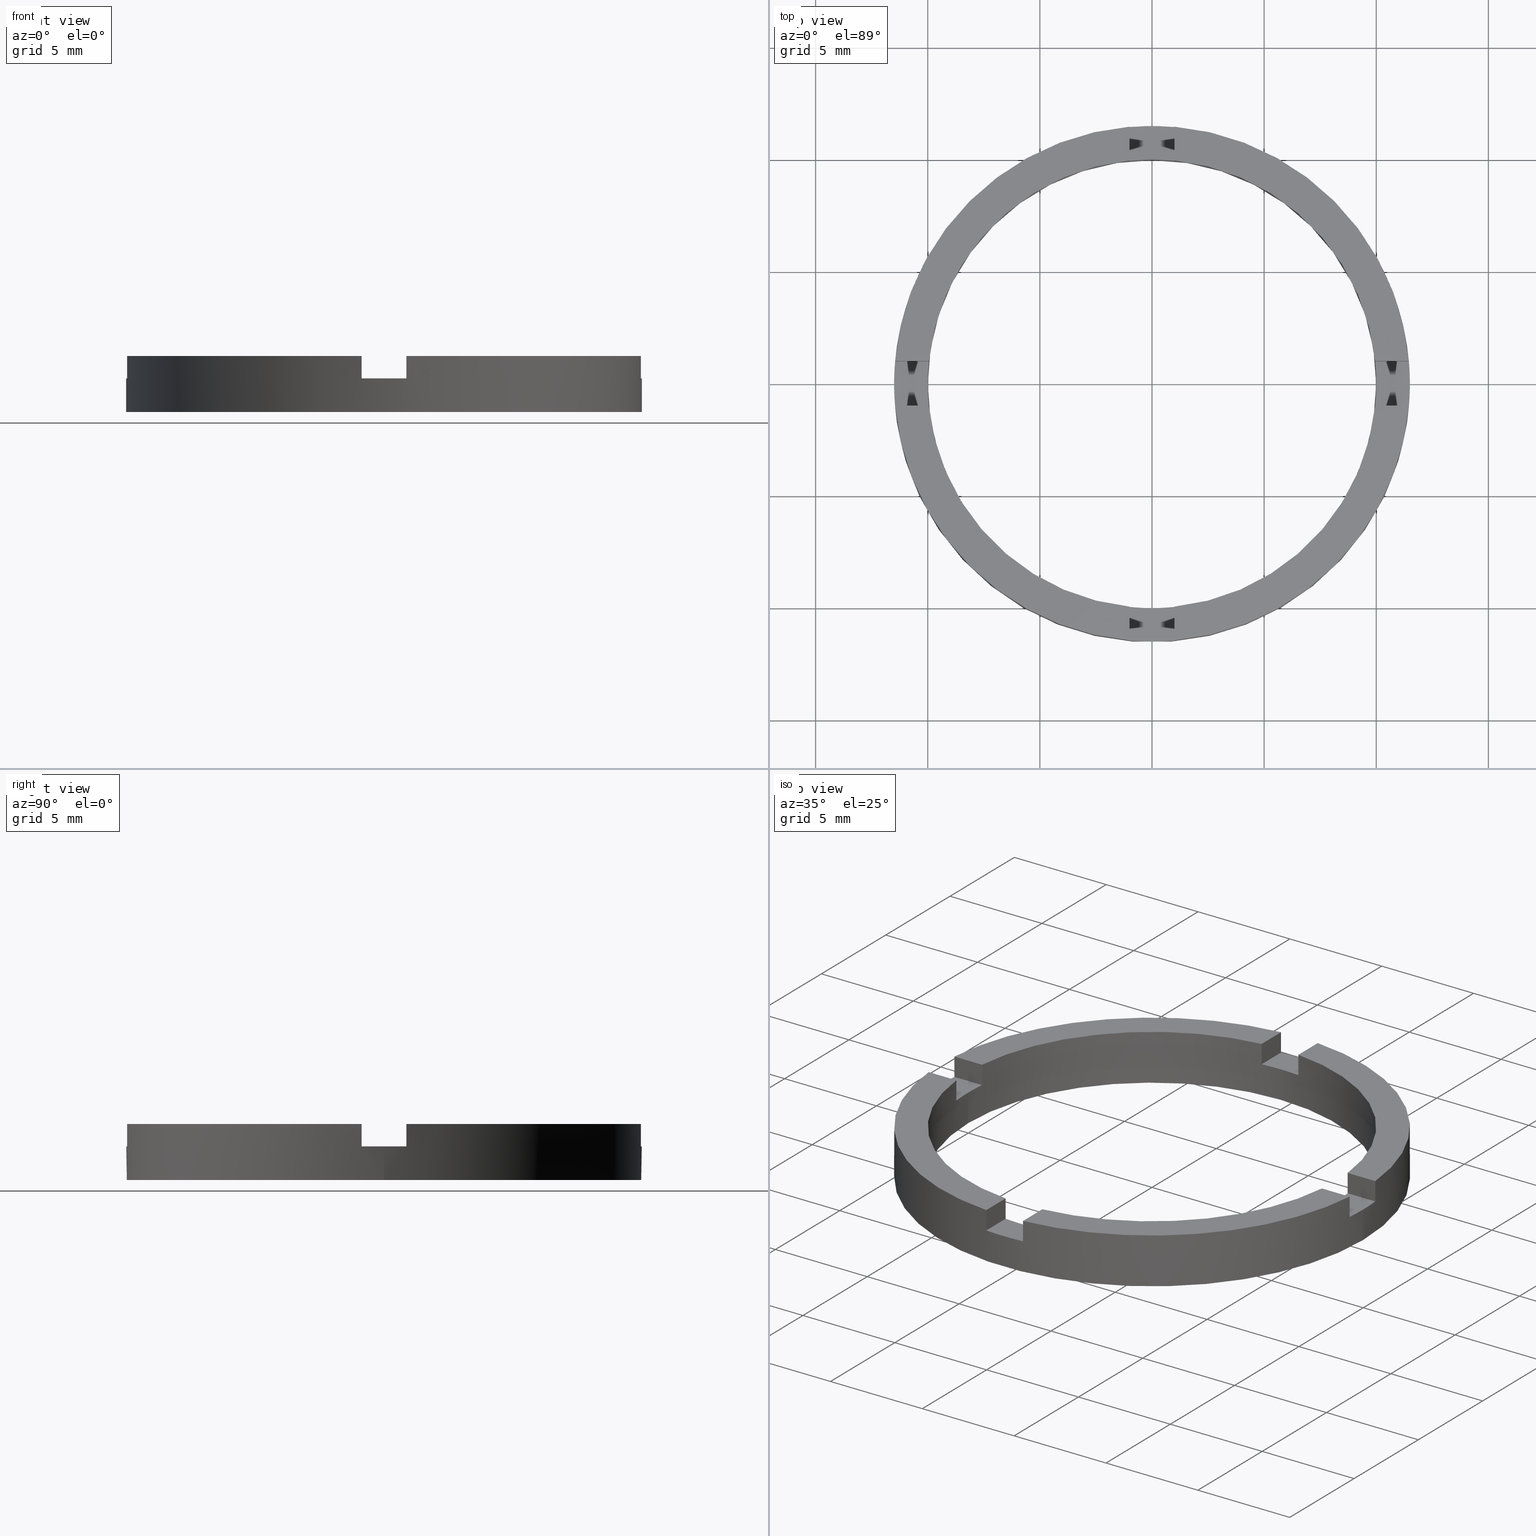
[diagram: canonical four-view strip — front | top / right | iso, engineering-drawing reading convention]
A machine part, canonical four-view strip (front | top / right | iso — engineering-drawing reading convention). The complete STEP part file that produces these views, byte-faithful:
ISO-10303-21;
HEADER;
FILE_DESCRIPTION (( 'STEP AP203' ),
    '1' );
FILE_NAME ('514052.step',
    '2024-12-26T02:32:57',
    ( 'MSI' ),
    ( '' ),
    'SwSTEP 2.0',
    'SolidWorks 2020',
    '' );
FILE_SCHEMA (( 'CONFIG_CONTROL_DESIGN' ));
ENDSEC;

DATA;
#1 = CARTESIAN_POINT ( 'NONE',  ( 0.9999999999999754641, 11.45643923738960090, 2.500000000000000000 ) ) ;
#2 = ORIENTED_EDGE ( 'NONE', *, *, #95, .T. ) ;
#3 = CARTESIAN_POINT ( 'NONE',  ( 0.9999999999998350209, -1.500000000000181632, 1.500000000000000000 ) ) ;
#4 = EDGE_CURVE ( 'NONE', #436, #29, #176, .T. ) ;
#5 = ORIENTED_EDGE ( 'NONE', *, *, #40, .T. ) ;
#6 = CARTESIAN_POINT ( 'NONE',  ( 0.000000000000000000, 0.000000000000000000, 1.500000000000000000 ) ) ;
#7 = ORIENTED_EDGE ( 'NONE', *, *, #95, .F. ) ;
#8 = DIRECTION ( 'NONE',  ( -0.000000000000000000, -0.000000000000000000, -1.000000000000000000 ) ) ;
#9 = APPLICATION_PROTOCOL_DEFINITION ( 'international standard', 'config_control_design', 1994, #485 ) ;
#10 = EDGE_LOOP ( 'NONE', ( #58, #519, #571, #778, #575, #594, #273, #36, #33, #546, #279, #294 ) ) ;
#11 = PRODUCT_DEFINITION_FORMATION_WITH_SPECIFIED_SOURCE ( '�κ�', '', #418, .NOT_KNOWN. ) ;
#12 = CARTESIAN_POINT ( 'NONE',  ( -11.45643923738960090, 0.9999999999999781286, 1.500000000000000000 ) ) ;
#13 = EDGE_CURVE ( 'NONE', #321, #689, #158, .T. ) ;
#14 = DIRECTION ( 'NONE',  ( -1.000000000000000000, 0.000000000000000000, 0.000000000000000000 ) ) ;
#15 = APPROVAL_ROLE ( '' ) ;
#16 = CARTESIAN_POINT ( 'NONE',  ( 1.499999999999997780, 0.9999999999998395728, 1.500000000000000000 ) ) ;
#17 = CARTESIAN_POINT ( 'NONE',  ( 11.45643923738961334, 0.9999999999998400169, 2.500000000000000000 ) ) ;
#18 = DIRECTION ( 'NONE',  ( -0.000000000000000000, -0.000000000000000000, -1.000000000000000000 ) ) ;
#19 = AXIS2_PLACEMENT_3D ( 'NONE', #138, #343, #533 ) ;
#20 = ORIENTED_EDGE ( 'NONE', *, *, #274, .T. ) ;
#21 = EDGE_LOOP ( 'NONE', ( #257, #584, #268, #558 ) ) ;
#22 = DIRECTION ( 'NONE',  ( 0.000000000000000000, 0.000000000000000000, 1.000000000000000000 ) ) ;
#23 = ORIENTED_EDGE ( 'NONE', *, *, #548, .F. ) ;
#24 = EDGE_LOOP ( 'NONE', ( #333, #23, #336, #603, #287, #46, #335, #559, #223, #51, #286, #5 ) ) ;
#25 = DIRECTION ( 'NONE',  ( 0.000000000000000000, 0.000000000000000000, 1.000000000000000000 ) ) ;
#26 = ORIENTED_EDGE ( 'NONE', *, *, #197, .T. ) ;
#27 = CARTESIAN_POINT ( 'NONE',  ( -1.500000000000185185, -1.000000000000020206, 1.500000000000000000 ) ) ;
#28 = ORIENTED_EDGE ( 'NONE', *, *, #224, .F. ) ;
#29 = VERTEX_POINT ( 'NONE', #291 ) ;
#30 = ORIENTED_EDGE ( 'NONE', *, *, #621, .F. ) ;
#31 = ORIENTED_EDGE ( 'NONE', *, *, #342, .F. ) ;
#32 = ADVANCED_BREP_SHAPE_REPRESENTATION ( '514052', ( #68, #395 ), #307 ) ;
#33 = ORIENTED_EDGE ( 'NONE', *, *, #606, .F. ) ;
#34 = CARTESIAN_POINT ( 'NONE',  ( -1.500000000000185185, -1.000000000000020206, 2.500000000000000000 ) ) ;
#35 = ORIENTED_EDGE ( 'NONE', *, *, #312, .F. ) ;
#36 = ORIENTED_EDGE ( 'NONE', *, *, #380, .T. ) ;
#37 = CC_DESIGN_APPROVAL ( #672, ( #64 ) ) ;
#38 = ORIENTED_EDGE ( 'NONE', *, *, #555, .F. ) ;
#39 = ORIENTED_EDGE ( 'NONE', *, *, #301, .T. ) ;
#40 = EDGE_CURVE ( 'NONE', #766, #277, #712, .T. ) ;
#41 = VERTEX_POINT ( 'NONE', #611 ) ;
#42 = CARTESIAN_POINT ( 'NONE',  ( 0.000000000000000000, 0.000000000000000000, 1.500000000000000000 ) ) ;
#43 = PERSON_AND_ORGANIZATION_ROLE ( 'design_supplier' ) ;
#44 = ORIENTED_EDGE ( 'NONE', *, *, #489, .T. ) ;
#45 = EDGE_CURVE ( 'NONE', #229, #321, #716, .T. ) ;
#46 = ORIENTED_EDGE ( 'NONE', *, *, #348, .F. ) ;
#47 = ORIENTED_EDGE ( 'NONE', *, *, #608, .F. ) ;
#48 = ORIENTED_EDGE ( 'NONE', *, *, #713, .F. ) ;
#49 = DIRECTION ( 'NONE',  ( 1.000000000000000000, 4.336808689942018352E-17, 0.000000000000000000 ) ) ;
#50 = ORIENTED_EDGE ( 'NONE', *, *, #649, .T. ) ;
#51 = ORIENTED_EDGE ( 'NONE', *, *, #364, .F. ) ;
#52 = ADVANCED_FACE ( 'NONE', ( #694 ), #89, .F. ) ;
#53 = ORIENTED_EDGE ( 'NONE', *, *, #74, .F. ) ;
#54 = CC_DESIGN_SECURITY_CLASSIFICATION ( #414, ( #11 ) ) ;
#55 = VERTEX_POINT ( 'NONE', #462 ) ;
#56 = DIRECTION ( 'NONE',  ( 1.000000000000000000, 0.000000000000000000, 0.000000000000000000 ) ) ;
#57 = CARTESIAN_POINT ( 'NONE',  ( -1.000000000000163869, -9.949874371066179890, 2.500000000000000000 ) ) ;
#58 = ORIENTED_EDGE ( 'NONE', *, *, #13, .F. ) ;
#59 = EDGE_CURVE ( 'NONE', #316, #539, #708, .T. ) ;
#60 = DIRECTION ( 'NONE',  ( 1.000000000000000000, 0.000000000000000000, 0.000000000000000000 ) ) ;
#61 = CARTESIAN_POINT ( 'NONE',  ( 0.000000000000000000, 0.000000000000000000, 1.500000000000000000 ) ) ;
#62 = DIRECTION ( 'NONE',  ( 1.000000000000000000, 0.000000000000000000, 0.000000000000000000 ) ) ;
#63 = DIRECTION ( 'NONE',  ( 1.000000000000000000, 0.000000000000000000, 0.000000000000000000 ) ) ;
#64 = PRODUCT_DEFINITION ( 'δ֪', '', #11, #758 ) ;
#65 = CARTESIAN_POINT ( 'NONE',  ( 0.000000000000000000, 0.000000000000000000, 2.500000000000000000 ) ) ;
#66 = AXIS2_PLACEMENT_3D ( 'NONE', #203, #547, #60 ) ;
#67 = EDGE_CURVE ( 'NONE', #495, #251, #675, .T. ) ;
#68 = MANIFOLD_SOLID_BREP ( '�г�-����1', #276 ) ;
#69 = CARTESIAN_POINT ( 'NONE',  ( -1.000000000000024425, 9.949874371066194101, 2.500000000000000000 ) ) ;
#70 = DIRECTION ( 'NONE',  ( 1.301042606982605567E-16, -1.000000000000000000, 0.000000000000000000 ) ) ;
#71 = CC_DESIGN_PERSON_AND_ORGANIZATION_ASSIGNMENT ( #99, #529, ( #64 ) ) ;
#72 = DIRECTION ( 'NONE',  ( 1.000000000000000000, 1.734723475976807341E-16, 0.000000000000000000 ) ) ;
#73 = APPROVAL_STATUS ( 'not_yet_approved' ) ;
#74 = EDGE_CURVE ( 'NONE', #512, #328, #180, .T. ) ;
#75 = DIRECTION ( 'NONE',  ( 1.734723475976807341E-16, -1.000000000000000000, 0.000000000000000000 ) ) ;
#76 = CARTESIAN_POINT ( 'NONE',  ( 0.000000000000000000, 0.000000000000000000, 1.500000000000000000 ) ) ;
#77 = DIRECTION ( 'NONE',  ( 0.000000000000000000, 0.000000000000000000, 1.000000000000000000 ) ) ;
#78 = PLANE ( 'NONE',  #212 ) ;
#79 = CARTESIAN_POINT ( 'NONE',  ( 9.949874371066213641, 0.9999999999998400169, 1.500000000000000000 ) ) ;
#80 = EDGE_CURVE ( 'NONE', #243, #55, #165, .T. ) ;
#81 = CC_DESIGN_PERSON_AND_ORGANIZATION_ASSIGNMENT ( #434, #43, ( #11 ) ) ;
#82 = CARTESIAN_POINT ( 'NONE',  ( 1.499999999999997780, 0.9999999999998395728, 1.500000000000000000 ) ) ;
#83 = APPROVAL_STATUS ( 'not_yet_approved' ) ;
#84 = DIRECTION ( 'NONE',  ( 0.000000000000000000, 0.000000000000000000, 1.000000000000000000 ) ) ;
#85 = DIRECTION ( 'NONE',  ( 1.000000000000000000, 1.734723475976807341E-16, -0.000000000000000000 ) ) ;
#86 = PERSON ( 'δָ��', 'δָ��', 'δָ��', ('δָ��'), ('δָ��'), ('δָ��') ) ;
#87 = EDGE_CURVE ( 'NONE', #420, #592, #153, .T. ) ;
#88 =( NAMED_UNIT ( * ) SI_UNIT ( $, .STERADIAN. ) SOLID_ANGLE_UNIT ( ) );
#89 = PLANE ( 'NONE',  #369 ) ;
#90 = CARTESIAN_POINT ( 'NONE',  ( 0.000000000000000000, 0.000000000000000000, 2.500000000000000000 ) ) ;
#91 = PERSON_AND_ORGANIZATION ( #86, #366 ) ;
#92 = AXIS2_PLACEMENT_3D ( 'NONE', #577, #75, #72 ) ;
#93 = CARTESIAN_POINT ( 'NONE',  ( -1.000000000000024425, 1.500000000000001332, 1.500000000000000000 ) ) ;
#94 = DIRECTION ( 'NONE',  ( 1.000000000000000000, 0.000000000000000000, 0.000000000000000000 ) ) ;
#95 = EDGE_CURVE ( 'NONE', #29, #251, #421, .T. ) ;
#96 = ADVANCED_FACE ( 'NONE', ( #175 ), #591, .T. ) ;
#97 = DIRECTION ( 'NONE',  ( 4.336808689942018352E-17, -1.000000000000000000, 0.000000000000000000 ) ) ;
#98 = AXIS2_PLACEMENT_3D ( 'NONE', #90, #173, #231 ) ;
#99 = PERSON_AND_ORGANIZATION ( #86, #366 ) ;
#100 = DIRECTION ( 'NONE',  ( -0.000000000000000000, -0.000000000000000000, -1.000000000000000000 ) ) ;
#101 = DATE_AND_TIME ( #638, #370 ) ;
#102 = DIRECTION ( 'NONE',  ( -1.000000000000000000, -1.734723475976807341E-16, 0.000000000000000000 ) ) ;
#103 = LOCAL_TIME ( 10, 32, 57.00000000000000000, #635 ) ;
#104 = DIRECTION ( 'NONE',  ( 0.000000000000000000, 0.000000000000000000, 1.000000000000000000 ) ) ;
#105 = DIRECTION ( 'NONE',  ( 1.000000000000000000, 0.000000000000000000, 0.000000000000000000 ) ) ;
#106 = DIRECTION ( 'NONE',  ( 1.000000000000000000, 0.000000000000000000, 0.000000000000000000 ) ) ;
#107 = EDGE_CURVE ( 'NONE', #508, #328, #444, .T. ) ;
#108 = PLANE ( 'NONE',  #751 ) ;
#109 = FACE_OUTER_BOUND ( 'NONE', #455, .T. ) ;
#110 = DIRECTION ( 'NONE',  ( 1.000000000000000000, 0.000000000000000000, 0.000000000000000000 ) ) ;
#111 = LINE ( 'NONE', #325, #408 ) ;
#112 = EDGE_CURVE ( 'NONE', #255, #55, #700, .T. ) ;
#113 = DIRECTION ( 'NONE',  ( 0.000000000000000000, 0.000000000000000000, 1.000000000000000000 ) ) ;
#114 = CARTESIAN_POINT ( 'NONE',  ( 11.45643923738958669, -1.000000000000160094, 2.500000000000000000 ) ) ;
#115 = CYLINDRICAL_SURFACE ( 'NONE', #602, 11.50000000000000000 ) ;
#116 = DIRECTION ( 'NONE',  ( -0.000000000000000000, 0.000000000000000000, 1.000000000000000000 ) ) ;
#117 = VECTOR ( 'NONE', #683, 1000.000000000000000 ) ;
#118 = CARTESIAN_POINT ( 'NONE',  ( -9.949874371066195877, -1.000000000000021760, 1.500000000000000000 ) ) ;
#119 = VECTOR ( 'NONE', #121, 1000.000000000000000 ) ;
#120 = CIRCLE ( 'NONE', #383, 11.50000000000000000 ) ;
#121 = DIRECTION ( 'NONE',  ( -0.000000000000000000, -0.000000000000000000, -1.000000000000000000 ) ) ;
#122 = LINE ( 'NONE', #232, #124 ) ;
#123 = FACE_OUTER_BOUND ( 'NONE', #534, .T. ) ;
#124 = VECTOR ( 'NONE', #695, 1000.000000000000000 ) ;
#125 = DIRECTION ( 'NONE',  ( -1.000000000000000000, -4.336808689942018352E-17, -0.000000000000000000 ) ) ;
#126 = CYLINDRICAL_SURFACE ( 'NONE', #593, 11.50000000000000000 ) ;
#127 = CARTESIAN_POINT ( 'NONE',  ( 0.000000000000000000, 0.000000000000000000, 1.500000000000000000 ) ) ;
#128 = FACE_OUTER_BOUND ( 'NONE', #770, .T. ) ;
#129 = AXIS2_PLACEMENT_3D ( 'NONE', #619, #646, #56 ) ;
#130 = CIRCLE ( 'NONE', #484, 9.999999999999998224 ) ;
#131 = LINE ( 'NONE', #446, #417 ) ;
#132 = DIRECTION ( 'NONE',  ( -0.000000000000000000, -0.000000000000000000, -1.000000000000000000 ) ) ;
#133 = FACE_OUTER_BOUND ( 'NONE', #492, .T. ) ;
#134 = FACE_OUTER_BOUND ( 'NONE', #10, .T. ) ;
#135 = VECTOR ( 'NONE', #100, 1000.000000000000000 ) ;
#136 = FACE_OUTER_BOUND ( 'NONE', #579, .T. ) ;
#137 = ADVANCED_FACE ( 'NONE', ( #454 ), #600, .T. ) ;
#138 = CARTESIAN_POINT ( 'NONE',  ( 0.000000000000000000, 0.000000000000000000, 1.500000000000000000 ) ) ;
#139 = AXIS2_PLACEMENT_3D ( 'NONE', #445, #726, #775 ) ;
#140 = PERSON_AND_ORGANIZATION ( #86, #366 ) ;
#141 = CIRCLE ( 'NONE', #643, 9.999999999999998224 ) ;
#142 = LINE ( 'NONE', #779, #394 ) ;
#143 = DIRECTION ( 'NONE',  ( 1.000000000000000000, 0.000000000000000000, -0.000000000000000000 ) ) ;
#144 = PERSON_AND_ORGANIZATION_ROLE ( 'design_owner' ) ;
#145 = FACE_OUTER_BOUND ( 'NONE', #517, .T. ) ;
#146 = ORIENTED_EDGE ( 'NONE', *, *, #713, .T. ) ;
#147 = LOCAL_TIME ( 10, 32, 57.00000000000000000, #705 ) ;
#148 = CIRCLE ( 'NONE', #252, 9.999999999999998224 ) ;
#149 = VECTOR ( 'NONE', #283, 1000.000000000000000 ) ;
#150 = DIRECTION ( 'NONE',  ( 1.000000000000000000, 0.000000000000000000, -0.000000000000000000 ) ) ;
#151 = DATE_AND_TIME ( #160, #169 ) ;
#152 = LINE ( 'NONE', #740, #422 ) ;
#153 = CIRCLE ( 'NONE', #468, 11.50000000000000000 ) ;
#154 = FACE_OUTER_BOUND ( 'NONE', #588, .T. ) ;
#155 = ORIENTED_EDGE ( 'NONE', *, *, #738, .F. ) ;
#156 = LINE ( 'NONE', #553, #412 ) ;
#157 = VERTEX_POINT ( 'NONE', #79 ) ;
#158 = LINE ( 'NONE', #399, #448 ) ;
#159 = EDGE_CURVE ( 'NONE', #501, #426, #698, .T. ) ;
#160 = CALENDAR_DATE ( 2024, 26, 12 ) ;
#161 = EDGE_LOOP ( 'NONE', ( #299, #762, #183, #155, #26, #7, #767, #241, #233, #504, #442, #219 ) ) ;
#162 = DIRECTION ( 'NONE',  ( 0.000000000000000000, 0.000000000000000000, 1.000000000000000000 ) ) ;
#163 = APPROVAL_DATE_TIME ( #693, #374 ) ;
#164 = VECTOR ( 'NONE', #347, 1000.000000000000000 ) ;
#165 = CIRCLE ( 'NONE', #535, 9.999999999999998224 ) ;
#166 = CARTESIAN_POINT ( 'NONE',  ( 0.000000000000000000, 0.000000000000000000, 0.000000000000000000 ) ) ;
#167 = APPROVAL_PERSON_ORGANIZATION ( #140, #374, #265 ) ;
#168 = VERTEX_POINT ( 'NONE', #17 ) ;
#169 = LOCAL_TIME ( 10, 32, 57.00000000000000000, #690 ) ;
#170 = VERTEX_POINT ( 'NONE', #628 ) ;
#171 = ORIENTED_EDGE ( 'NONE', *, *, #722, .T. ) ;
#172 = ORIENTED_EDGE ( 'NONE', *, *, #365, .F. ) ;
#173 = DIRECTION ( 'NONE',  ( 0.000000000000000000, 0.000000000000000000, 1.000000000000000000 ) ) ;
#174 = LINE ( 'NONE', #261, #478 ) ;
#175 = FACE_OUTER_BOUND ( 'NONE', #507, .T. ) ;
#176 = LINE ( 'NONE', #34, #433 ) ;
#177 = DIRECTION ( 'NONE',  ( 0.000000000000000000, 0.000000000000000000, 1.000000000000000000 ) ) ;
#178 = ORIENTED_EDGE ( 'NONE', *, *, #74, .T. ) ;
#179 = EDGE_LOOP ( 'NONE', ( #48, #264, #573, #543 ) ) ;
#180 = LINE ( 'NONE', #578, #164 ) ;
#181 = CARTESIAN_POINT ( 'NONE',  ( -1.000000000000024425, 11.45643923738959735, 2.500000000000000000 ) ) ;
#182 = VECTOR ( 'NONE', #389, 1000.000000000000000 ) ;
#183 = ORIENTED_EDGE ( 'NONE', *, *, #527, .F. ) ;
#184 = FACE_OUTER_BOUND ( 'NONE', #681, .T. ) ;
#185 = VERTEX_POINT ( 'NONE', #275 ) ;
#186 = DIRECTION ( 'NONE',  ( 1.000000000000000000, 0.000000000000000000, -0.000000000000000000 ) ) ;
#187 = AXIS2_PLACEMENT_3D ( 'NONE', #318, #362, #439 ) ;
#188 = DIRECTION ( 'NONE',  ( 1.000000000000000000, 0.000000000000000000, 0.000000000000000000 ) ) ;
#189 = VECTOR ( 'NONE', #522, 1000.000000000000000 ) ;
#190 = VECTOR ( 'NONE', #457, 1000.000000000000000 ) ;
#191 = LINE ( 'NONE', #247, #190 ) ;
#192 = FACE_OUTER_BOUND ( 'NONE', #565, .T. ) ;
#193 = CARTESIAN_POINT ( 'NONE',  ( 0.000000000000000000, 0.000000000000000000, 2.500000000000000000 ) ) ;
#194 = DIRECTION ( 'NONE',  ( -1.301042606982605567E-16, 1.000000000000000000, -0.000000000000000000 ) ) ;
#195 = LINE ( 'NONE', #272, #721 ) ;
#196 = FACE_OUTER_BOUND ( 'NONE', #744, .T. ) ;
#197 = EDGE_CURVE ( 'NONE', #41, #251, #718, .T. ) ;
#198 = VECTOR ( 'NONE', #545, 1000.000000000000000 ) ;
#199 = DIRECTION ( 'NONE',  ( 1.000000000000000000, 0.000000000000000000, 0.000000000000000000 ) ) ;
#200 = DIRECTION ( 'NONE',  ( 1.000000000000000000, 0.000000000000000000, 0.000000000000000000 ) ) ;
#201 = LINE ( 'NONE', #16, #735 ) ;
#202 = CARTESIAN_POINT ( 'NONE',  ( -11.50000000000000000, 0.000000000000000000, 1.500000000000000000 ) ) ;
#203 = CARTESIAN_POINT ( 'NONE',  ( 0.000000000000000000, 0.000000000000000000, 2.500000000000000000 ) ) ;
#204 = EDGE_CURVE ( 'NONE', #230, #246, #452, .T. ) ;
#205 = CARTESIAN_POINT ( 'NONE',  ( -11.45643923738960090, 0.9999999999999781286, 2.500000000000000000 ) ) ;
#206 = CC_DESIGN_APPROVAL ( #374, ( #414 ) ) ;
#207 = DIRECTION ( 'NONE',  ( -0.000000000000000000, -0.000000000000000000, -1.000000000000000000 ) ) ;
#208 = CARTESIAN_POINT ( 'NONE',  ( -1.000000000000163647, -11.45643923738958669, 2.500000000000000000 ) ) ;
#209 = DIRECTION ( 'NONE',  ( -0.000000000000000000, -0.000000000000000000, -1.000000000000000000 ) ) ;
#210 = CARTESIAN_POINT ( 'NONE',  ( -1.000000000000163869, -9.949874371066179890, 2.500000000000000000 ) ) ;
#211 = DIRECTION ( 'NONE',  ( 1.000000000000000000, 0.000000000000000000, -0.000000000000000000 ) ) ;
#212 = AXIS2_PLACEMENT_3D ( 'NONE', #386, #25, #143 ) ;
#213 = DIRECTION ( 'NONE',  ( 1.000000000000000000, 1.734723475976807341E-16, -0.000000000000000000 ) ) ;
#214 = ADVANCED_FACE ( 'NONE', ( #184 ), #387, .F. ) ;
#215 = CARTESIAN_POINT ( 'NONE',  ( -11.50000000000000000, 0.000000000000000000, 0.000000000000000000 ) ) ;
#216 = ORIENTED_EDGE ( 'NONE', *, *, #256, .F. ) ;
#217 = VERTEX_POINT ( 'NONE', #208 ) ;
#218 = AXIS2_PLACEMENT_3D ( 'NONE', #42, #244, #615 ) ;
#219 = ORIENTED_EDGE ( 'NONE', *, *, #722, .F. ) ;
#220 = DIRECTION ( 'NONE',  ( 1.000000000000000000, 0.000000000000000000, 0.000000000000000000 ) ) ;
#221 = ORIENTED_EDGE ( 'NONE', *, *, #403, .F. ) ;
#222 = ORIENTED_EDGE ( 'NONE', *, *, #107, .T. ) ;
#223 = ORIENTED_EDGE ( 'NONE', *, *, #497, .T. ) ;
#224 = EDGE_CURVE ( 'NONE', #246, #774, #458, .T. ) ;
#225 = ADVANCED_FACE ( 'NONE', ( #682 ), #461, .F. ) ;
#226 = DIRECTION ( 'NONE',  ( 0.000000000000000000, 0.000000000000000000, 1.000000000000000000 ) ) ;
#227 = ORIENTED_EDGE ( 'NONE', *, *, #197, .F. ) ;
#228 = CARTESIAN_POINT ( 'NONE',  ( 0.000000000000000000, 0.000000000000000000, 1.500000000000000000 ) ) ;
#229 = VERTEX_POINT ( 'NONE', #630 ) ;
#230 = VERTEX_POINT ( 'NONE', #701 ) ;
#231 = DIRECTION ( 'NONE',  ( 1.000000000000000000, 0.000000000000000000, 0.000000000000000000 ) ) ;
#232 = CARTESIAN_POINT ( 'NONE',  ( 1.499999999999997780, -1.000000000000160538, 2.500000000000000000 ) ) ;
#233 = ORIENTED_EDGE ( 'NONE', *, *, #614, .T. ) ;
#234 = CARTESIAN_POINT ( 'NONE',  ( 0.000000000000000000, 0.000000000000000000, 0.000000000000000000 ) ) ;
#235 = ADVANCED_FACE ( 'NONE', ( #196, #724 ), #385, .F. ) ;
#236 = EDGE_CURVE ( 'NONE', #720, #55, #195, .T. ) ;
#237 = CARTESIAN_POINT ( 'NONE',  ( 0.9999999999999754641, 9.949874371066199430, 2.500000000000000000 ) ) ;
#238 = DIRECTION ( 'NONE',  ( -0.000000000000000000, -0.000000000000000000, -1.000000000000000000 ) ) ;
#239 = CARTESIAN_POINT ( 'NONE',  ( 11.45643923738958669, -1.000000000000160094, 1.500000000000000000 ) ) ;
#240 = CC_DESIGN_PERSON_AND_ORGANIZATION_ASSIGNMENT ( #679, #353, ( #414 ) ) ;
#241 = ORIENTED_EDGE ( 'NONE', *, *, #59, .F. ) ;
#242 = VERTEX_POINT ( 'NONE', #496 ) ;
#243 = VERTEX_POINT ( 'NONE', #556 ) ;
#244 = DIRECTION ( 'NONE',  ( -0.000000000000000000, 0.000000000000000000, 1.000000000000000000 ) ) ;
#245 = DIRECTION ( 'NONE',  ( -0.000000000000000000, 0.000000000000000000, 1.000000000000000000 ) ) ;
#246 = VERTEX_POINT ( 'NONE', #12 ) ;
#247 = CARTESIAN_POINT ( 'NONE',  ( -1.000000000000024425, 1.500000000000001332, 2.500000000000000000 ) ) ;
#248 = PLANE ( 'NONE',  #187 ) ;
#249 = AXIS2_PLACEMENT_3D ( 'NONE', #749, #474, #14 ) ;
#250 = DIRECTION ( 'NONE',  ( 0.000000000000000000, 0.000000000000000000, 1.000000000000000000 ) ) ;
#251 = VERTEX_POINT ( 'NONE', #118 ) ;
#252 = AXIS2_PLACEMENT_3D ( 'NONE', #505, #372, #253 ) ;
#253 = DIRECTION ( 'NONE',  ( 1.000000000000000000, 0.000000000000000000, 0.000000000000000000 ) ) ;
#254 = DIRECTION ( 'NONE',  ( 1.000000000000000000, 0.000000000000000000, -0.000000000000000000 ) ) ;
#255 = VERTEX_POINT ( 'NONE', #503 ) ;
#256 = EDGE_CURVE ( 'NONE', #230, #41, #464, .T. ) ;
#257 = ORIENTED_EDGE ( 'NONE', *, *, #262, .T. ) ;
#258 = AXIS2_PLACEMENT_3D ( 'NONE', #661, #419, #200 ) ;
#259 = EDGE_LOOP ( 'NONE', ( #541, #329, #509, #711, #443, #411, #447, #754, #295, #222, #38, #20 ) ) ;
#260 = CARTESIAN_POINT ( 'NONE',  ( 0.000000000000000000, 0.000000000000000000, 1.500000000000000000 ) ) ;
#261 = CARTESIAN_POINT ( 'NONE',  ( 1.499999999999997780, -1.000000000000160538, 1.500000000000000000 ) ) ;
#262 = EDGE_CURVE ( 'NONE', #491, #720, #191, .T. ) ;
#263 = CARTESIAN_POINT ( 'NONE',  ( 0.000000000000000000, 0.000000000000000000, 2.500000000000000000 ) ) ;
#264 = ORIENTED_EDGE ( 'NONE', *, *, #748, .F. ) ;
#265 = APPROVAL_ROLE ( '' ) ;
#266 = PLANE ( 'NONE',  #92 ) ;
#267 = DIRECTION ( 'NONE',  ( 1.000000000000000000, 0.000000000000000000, 0.000000000000000000 ) ) ;
#268 = ORIENTED_EDGE ( 'NONE', *, *, #112, .F. ) ;
#269 = DIRECTION ( 'NONE',  ( -1.000000000000000000, 0.000000000000000000, 0.000000000000000000 ) ) ;
#270 = EDGE_CURVE ( 'NONE', #501, #524, #463, .T. ) ;
#271 = PLANE ( 'NONE',  #480 ) ;
#272 = CARTESIAN_POINT ( 'NONE',  ( -1.000000000000024425, 9.949874371066194101, 2.500000000000000000 ) ) ;
#273 = ORIENTED_EDGE ( 'NONE', *, *, #236, .F. ) ;
#274 = EDGE_CURVE ( 'NONE', #168, #592, #725, .T. ) ;
#275 = CARTESIAN_POINT ( 'NONE',  ( 9.949874371066213641, 0.9999999999998400169, 2.500000000000000000 ) ) ;
#276 = CLOSED_SHELL ( 'NONE', ( #225, #776, #598, #137, #345, #488, #235, #536, #469, #756, #349, #293, #355, #214, #609, #483, #340, #96, #52, #303, #397 ) ) ;
#277 = VERTEX_POINT ( 'NONE', #669 ) ;
#278 = CARTESIAN_POINT ( 'NONE',  ( 0.000000000000000000, 0.000000000000000000, 0.000000000000000000 ) ) ;
#279 = ORIENTED_EDGE ( 'NONE', *, *, #738, .T. ) ;
#280 = PRODUCT_RELATED_PRODUCT_CATEGORY ( 'detail', '', ( #418 ) ) ;
#281 = DATE_TIME_ROLE ( 'classification_date' ) ;
#282 = ORIENTED_EDGE ( 'NONE', *, *, #270, .T. ) ;
#283 = DIRECTION ( 'NONE',  ( 0.000000000000000000, 0.000000000000000000, 1.000000000000000000 ) ) ;
#284 = EDGE_LOOP ( 'NONE', ( #769, #44 ) ) ;
#285 = CARTESIAN_POINT ( 'NONE',  ( -1.000000000000024425, 11.45643923738959735, 2.500000000000000000 ) ) ;
#286 = ORIENTED_EDGE ( 'NONE', *, *, #761, .T. ) ;
#287 = ORIENTED_EDGE ( 'NONE', *, *, #159, .T. ) ;
#288 = AXIS2_PLACEMENT_3D ( 'NONE', #228, #177, #486 ) ;
#289 = DIRECTION ( 'NONE',  ( 0.000000000000000000, 0.000000000000000000, 1.000000000000000000 ) ) ;
#290 = AXIS2_PLACEMENT_3D ( 'NONE', #424, #334, #743 ) ;
#291 = CARTESIAN_POINT ( 'NONE',  ( -9.949874371066195877, -1.000000000000021760, 2.500000000000000000 ) ) ;
#292 = ORIENTED_EDGE ( 'NONE', *, *, #624, .F. ) ;
#293 = ADVANCED_FACE ( 'NONE', ( #192 ), #514, .T. ) ;
#294 = ORIENTED_EDGE ( 'NONE', *, *, #489, .F. ) ;
#295 = ORIENTED_EDGE ( 'NONE', *, *, #629, .F. ) ;
#296 = DIRECTION ( 'NONE',  ( -0.000000000000000000, -0.000000000000000000, -1.000000000000000000 ) ) ;
#297 = EDGE_CURVE ( 'NONE', #410, #774, #401, .T. ) ;
#298 = ORIENTED_EDGE ( 'NONE', *, *, #4, .T. ) ;
#299 = ORIENTED_EDGE ( 'NONE', *, *, #45, .T. ) ;
#300 = ORIENTED_EDGE ( 'NONE', *, *, #364, .T. ) ;
#301 = EDGE_CURVE ( 'NONE', #491, #774, #392, .T. ) ;
#302 = PLANE ( 'NONE',  #544 ) ;
#303 = ADVANCED_FACE ( 'NONE', ( #109 ), #563, .F. ) ;
#304 = VERTEX_POINT ( 'NONE', #239 ) ;
#305 = ORIENTED_EDGE ( 'NONE', *, *, #629, .T. ) ;
#306 = CARTESIAN_POINT ( 'NONE',  ( -1.000000000000163869, -9.949874371066179890, 1.500000000000000000 ) ) ;
#307 =( GEOMETRIC_REPRESENTATION_CONTEXT ( 3 ) GLOBAL_UNCERTAINTY_ASSIGNED_CONTEXT ( ( #636 ) ) GLOBAL_UNIT_ASSIGNED_CONTEXT ( ( #388, #605, #88 ) ) REPRESENTATION_CONTEXT ( 'NONE', 'WORKASPACE' ) );
#308 = ORIENTED_EDGE ( 'NONE', *, *, #344, .T. ) ;
#309 = ORIENTED_EDGE ( 'NONE', *, *, #624, .T. ) ;
#310 = PLANE ( 'NONE',  #518 ) ;
#311 = CARTESIAN_POINT ( 'NONE',  ( 0.000000000000000000, 0.000000000000000000, 2.500000000000000000 ) ) ;
#312 = EDGE_CURVE ( 'NONE', #321, #157, #141, .T. ) ;
#313 = ORIENTED_EDGE ( 'NONE', *, *, #614, .F. ) ;
#314 = ORIENTED_EDGE ( 'NONE', *, *, #552, .T. ) ;
#315 = DIRECTION ( 'NONE',  ( -0.000000000000000000, -0.000000000000000000, -1.000000000000000000 ) ) ;
#316 = VERTEX_POINT ( 'NONE', #306 ) ;
#317 = ORIENTED_EDGE ( 'NONE', *, *, #40, .F. ) ;
#318 = CARTESIAN_POINT ( 'NONE',  ( 0.9999999999998350209, -1.500000000000181632, 1.500000000000000000 ) ) ;
#319 = CARTESIAN_POINT ( 'NONE',  ( -9.949874371066199430, 0.9999999999999783507, 2.500000000000000000 ) ) ;
#320 = ORIENTED_EDGE ( 'NONE', *, *, #380, .F. ) ;
#321 = VERTEX_POINT ( 'NONE', #780 ) ;
#322 = ORIENTED_EDGE ( 'NONE', *, *, #45, .F. ) ;
#323 = AXIS2_PLACEMENT_3D ( 'NONE', #466, #77, #211 ) ;
#324 = ORIENTED_EDGE ( 'NONE', *, *, #773, .T. ) ;
#325 = CARTESIAN_POINT ( 'NONE',  ( -1.000000000000164979, -1.500000000000181632, 1.500000000000000000 ) ) ;
#326 = CARTESIAN_POINT ( 'NONE',  ( 0.000000000000000000, 0.000000000000000000, 1.500000000000000000 ) ) ;
#327 = ORIENTED_EDGE ( 'NONE', *, *, #67, .F. ) ;
#328 = VERTEX_POINT ( 'NONE', #1 ) ;
#329 = ORIENTED_EDGE ( 'NONE', *, *, #730, .T. ) ;
#330 = ORIENTED_EDGE ( 'NONE', *, *, #555, .T. ) ;
#331 = DIRECTION ( 'NONE',  ( 0.000000000000000000, -0.000000000000000000, 1.000000000000000000 ) ) ;
#332 = CARTESIAN_POINT ( 'NONE',  ( 0.000000000000000000, 0.000000000000000000, 2.500000000000000000 ) ) ;
#333 = ORIENTED_EDGE ( 'NONE', *, *, #730, .F. ) ;
#334 = DIRECTION ( 'NONE',  ( 1.000000000000000000, -0.000000000000000000, 0.000000000000000000 ) ) ;
#335 = ORIENTED_EDGE ( 'NONE', *, *, #608, .T. ) ;
#336 = ORIENTED_EDGE ( 'NONE', *, *, #607, .T. ) ;
#337 = AXIS2_PLACEMENT_3D ( 'NONE', #61, #113, #199 ) ;
#338 = CARTESIAN_POINT ( 'NONE',  ( 9.949874371066181666, -1.000000000000160094, 2.500000000000000000 ) ) ;
#339 = AXIS2_PLACEMENT_3D ( 'NONE', #361, #116, #188 ) ;
#340 = ADVANCED_FACE ( 'NONE', ( #145 ), #302, .F. ) ;
#341 = CARTESIAN_POINT ( 'NONE',  ( -1.500000000000185185, 0.9999999999999799050, 1.500000000000000000 ) ) ;
#342 = EDGE_CURVE ( 'NONE', #185, #512, #645, .T. ) ;
#343 = DIRECTION ( 'NONE',  ( 0.000000000000000000, 0.000000000000000000, 1.000000000000000000 ) ) ;
#344 = EDGE_CURVE ( 'NONE', #243, #512, #665, .T. ) ;
#345 = ADVANCED_FACE ( 'NONE', ( #154 ), #108, .T. ) ;
#346 = DIRECTION ( 'NONE',  ( 1.000000000000000000, 0.000000000000000000, 0.000000000000000000 ) ) ;
#347 = DIRECTION ( 'NONE',  ( 0.000000000000000000, 1.000000000000000000, 0.000000000000000000 ) ) ;
#348 = EDGE_CURVE ( 'NONE', #685, #426, #402, .T. ) ;
#349 = ADVANCED_FACE ( 'NONE', ( #136 ), #310, .F. ) ;
#350 = CC_DESIGN_DATE_AND_TIME_ASSIGNMENT ( #684, #281, ( #414 ) ) ;
#351 = CARTESIAN_POINT ( 'NONE',  ( 0.9999999999999754641, 1.500000000000001332, 1.500000000000000000 ) ) ;
#352 = CARTESIAN_POINT ( 'NONE',  ( 0.000000000000000000, 0.000000000000000000, 1.500000000000000000 ) ) ;
#353 = PERSON_AND_ORGANIZATION_ROLE ( 'classification_officer' ) ;
#354 = AXIS2_PLACEMENT_3D ( 'NONE', #753, #22, #482 ) ;
#355 = ADVANCED_FACE ( 'NONE', ( #670 ), #248, .F. ) ;
#356 = CARTESIAN_POINT ( 'NONE',  ( 11.45643923738958669, -1.000000000000160094, 2.500000000000000000 ) ) ;
#357 = CARTESIAN_POINT ( 'NONE',  ( 11.45643923738961334, 0.9999999999998400169, 2.500000000000000000 ) ) ;
#358 = AXIS2_PLACEMENT_3D ( 'NONE', #367, #570, #106 ) ;
#359 = PRODUCT_DEFINITION_SHAPE ( 'NONE', 'NONE',  #64 ) ;
#360 = CARTESIAN_POINT ( 'NONE',  ( -1.500000000000185185, 0.9999999999999799050, 1.500000000000000000 ) ) ;
#361 = CARTESIAN_POINT ( 'NONE',  ( 0.000000000000000000, 0.000000000000000000, 1.500000000000000000 ) ) ;
#362 = DIRECTION ( 'NONE',  ( 1.000000000000000000, 1.301042606982605567E-16, 0.000000000000000000 ) ) ;
#363 = CARTESIAN_POINT ( 'NONE',  ( 0.9999999999998350209, -1.500000000000181632, 2.500000000000000000 ) ) ;
#364 = EDGE_CURVE ( 'NONE', #567, #495, #381, .T. ) ;
#365 = EDGE_CURVE ( 'NONE', #316, #685, #111, .T. ) ;
#366 = ORGANIZATION ( 'δָ��', 'δָ��', '' ) ;
#367 = CARTESIAN_POINT ( 'NONE',  ( 0.000000000000000000, 0.000000000000000000, 1.500000000000000000 ) ) ;
#368 = CALENDAR_DATE ( 2024, 26, 12 ) ;
#369 = AXIS2_PLACEMENT_3D ( 'NONE', #93, #537, #226 ) ;
#370 = LOCAL_TIME ( 10, 32, 57.00000000000000000, #371 ) ;
#371 = COORDINATED_UNIVERSAL_TIME_OFFSET ( 8, 0, .AHEAD. ) ;
#372 = DIRECTION ( 'NONE',  ( 0.000000000000000000, 0.000000000000000000, 1.000000000000000000 ) ) ;
#373 = APPROVAL_PERSON_ORGANIZATION ( #639, #742, #626 ) ;
#374 = APPROVAL ( #83, 'δָ��' ) ;
#375 = DIRECTION ( 'NONE',  ( 0.000000000000000000, 0.000000000000000000, 1.000000000000000000 ) ) ;
#376 = APPROVAL_DATE_TIME ( #637, #672 ) ;
#377 = CARTESIAN_POINT ( 'NONE',  ( 0.000000000000000000, 0.000000000000000000, 1.500000000000000000 ) ) ;
#378 = CARTESIAN_POINT ( 'NONE',  ( -9.999999999999998224, 0.000000000000000000, 2.500000000000000000 ) ) ;
#379 = CARTESIAN_POINT ( 'NONE',  ( -11.45643923738960090, 0.9999999999999781286, 2.500000000000000000 ) ) ;
#380 = EDGE_CURVE ( 'NONE', #720, #410, #671, .T. ) ;
#381 = CIRCLE ( 'NONE', #337, 11.50000000000000000 ) ;
#382 = DIRECTION ( 'NONE',  ( -4.336808689942018352E-17, 1.000000000000000000, 0.000000000000000000 ) ) ;
#383 = AXIS2_PLACEMENT_3D ( 'NONE', #595, #479, #346 ) ;
#384 = DIRECTION ( 'NONE',  ( 1.000000000000000000, 0.000000000000000000, 0.000000000000000000 ) ) ;
#385 = PLANE ( 'NONE',  #323 ) ;
#386 = CARTESIAN_POINT ( 'NONE',  ( 0.000000000000000000, 0.000000000000000000, 2.500000000000000000 ) ) ;
#387 = PLANE ( 'NONE',  #506 ) ;
#388 =( LENGTH_UNIT ( ) NAMED_UNIT ( * ) SI_UNIT ( .MILLI., .METRE. ) );
#389 = DIRECTION ( 'NONE',  ( -0.000000000000000000, -1.000000000000000000, -0.000000000000000000 ) ) ;
#390 = EDGE_CURVE ( 'NONE', #436, #217, #680, .T. ) ;
#391 = CIRCLE ( 'NONE', #587, 11.50000000000000000 ) ;
#392 = CIRCLE ( 'NONE', #580, 11.50000000000000000 ) ;
#393 = CARTESIAN_POINT ( 'NONE',  ( -11.45643923738959735, -1.000000000000021982, 1.500000000000000000 ) ) ;
#394 = VECTOR ( 'NONE', #238, 1000.000000000000000 ) ;
#395 = AXIS2_PLACEMENT_3D ( 'NONE', #166, #597, #750 ) ;
#396 = MECHANICAL_CONTEXT ( 'NONE', #745, 'mechanical' ) ;
#397 = ADVANCED_FACE ( 'NONE', ( #133 ), #746, .T. ) ;
#398 = VECTOR ( 'NONE', #667, 1000.000000000000000 ) ;
#399 = CARTESIAN_POINT ( 'NONE',  ( 9.999999999999998224, 1.224646799147353059E-15, 2.500000000000000000 ) ) ;
#400 = CIRCLE ( 'NONE', #456, 11.50000000000000000 ) ;
#401 = LINE ( 'NONE', #676, #406 ) ;
#402 = CIRCLE ( 'NONE', #218, 11.50000000000000000 ) ;
#403 = EDGE_CURVE ( 'NONE', #277, #766, #120, .T. ) ;
#404 = CIRCLE ( 'NONE', #449, 9.999999999999998224 ) ;
#405 = CIRCLE ( 'NONE', #763, 9.999999999999998224 ) ;
#406 = VECTOR ( 'NONE', #102, 1000.000000000000000 ) ;
#407 = SHAPE_DEFINITION_REPRESENTATION ( #359, #32 ) ;
#408 = VECTOR ( 'NONE', #540, 1000.000000000000000 ) ;
#409 = LINE ( 'NONE', #3, #674 ) ;
#410 = VERTEX_POINT ( 'NONE', #709 ) ;
#411 = ORIENTED_EDGE ( 'NONE', *, *, #224, .T. ) ;
#412 = VECTOR ( 'NONE', #739, 1000.000000000000000 ) ;
#413 = VECTOR ( 'NONE', #213, 1000.000000000000000 ) ;
#414 = SECURITY_CLASSIFICATION ( '', '', #481 ) ;
#415 = CARTESIAN_POINT ( 'NONE',  ( 1.499999999999997780, -1.000000000000160538, 1.500000000000000000 ) ) ;
#416 = PERSON_AND_ORGANIZATION ( #86, #366 ) ;
#417 = VECTOR ( 'NONE', #560, 1000.000000000000000 ) ;
#418 = PRODUCT ( '514052', '514052', '', ( #396 ) ) ;
#419 = DIRECTION ( 'NONE',  ( 0.000000000000000000, 0.000000000000000000, 1.000000000000000000 ) ) ;
#420 = VERTEX_POINT ( 'NONE', #625 ) ;
#421 = LINE ( 'NONE', #471, #435 ) ;
#422 = VECTOR ( 'NONE', #777, 1000.000000000000000 ) ;
#423 = ORIENTED_EDGE ( 'NONE', *, *, #204, .T. ) ;
#424 = CARTESIAN_POINT ( 'NONE',  ( 0.9999999999999754641, 1.500000000000001332, 1.500000000000000000 ) ) ;
#425 = VECTOR ( 'NONE', #440, 1000.000000000000000 ) ;
#426 = VERTEX_POINT ( 'NONE', #634 ) ;
#427 = CIRCLE ( 'NONE', #783, 11.50000000000000000 ) ;
#428 = ORIENTED_EDGE ( 'NONE', *, *, #647, .T. ) ;
#429 = DIRECTION ( 'NONE',  ( -1.000000000000000000, -1.734723475976807341E-16, 0.000000000000000000 ) ) ;
#430 = APPROVAL_DATE_TIME ( #151, #742 ) ;
#431 = FACE_OUTER_BOUND ( 'NONE', #179, .T. ) ;
#432 = DIRECTION ( 'NONE',  ( 0.000000000000000000, 0.000000000000000000, 1.000000000000000000 ) ) ;
#433 = VECTOR ( 'NONE', #85, 1000.000000000000000 ) ;
#434 = PERSON_AND_ORGANIZATION ( #86, #366 ) ;
#435 = VECTOR ( 'NONE', #642, 1000.000000000000000 ) ;
#436 = VERTEX_POINT ( 'NONE', #768 ) ;
#437 = VECTOR ( 'NONE', #633, 1000.000000000000000 ) ;
#438 = LOCAL_TIME ( 10, 32, 57.00000000000000000, #697 ) ;
#439 = DIRECTION ( 'NONE',  ( -1.301042606982605567E-16, 1.000000000000000000, 0.000000000000000000 ) ) ;
#440 = DIRECTION ( 'NONE',  ( -1.301042606982605567E-16, 1.000000000000000000, -0.000000000000000000 ) ) ;
#441 = ORIENTED_EDGE ( 'NONE', *, *, #576, .T. ) ;
#442 = ORIENTED_EDGE ( 'NONE', *, *, #621, .T. ) ;
#443 = ORIENTED_EDGE ( 'NONE', *, *, #772, .F. ) ;
#444 = LINE ( 'NONE', #707, #450 ) ;
#445 = CARTESIAN_POINT ( 'NONE',  ( 0.000000000000000000, 0.000000000000000000, 2.500000000000000000 ) ) ;
#446 = CARTESIAN_POINT ( 'NONE',  ( 1.499999999999997780, 0.9999999999998395728, 2.500000000000000000 ) ) ;
#447 = ORIENTED_EDGE ( 'NONE', *, *, #301, .F. ) ;
#448 = VECTOR ( 'NONE', #490, 1000.000000000000000 ) ;
#449 = AXIS2_PLACEMENT_3D ( 'NONE', #616, #432, #62 ) ;
#450 = VECTOR ( 'NONE', #162, 1000.000000000000000 ) ;
#451 = DIRECTION ( 'NONE',  ( 0.000000000000000000, 0.000000000000000000, 1.000000000000000000 ) ) ;
#452 = LINE ( 'NONE', #341, #437 ) ;
#453 = DIRECTION ( 'NONE',  ( 0.000000000000000000, -0.000000000000000000, 1.000000000000000000 ) ) ;
#454 = FACE_OUTER_BOUND ( 'NONE', #562, .T. ) ;
#455 = EDGE_LOOP ( 'NONE', ( #714, #308, #178, #564 ) ) ;
#456 = AXIS2_PLACEMENT_3D ( 'NONE', #65, #654, #105 ) ;
#457 = DIRECTION ( 'NONE',  ( -0.000000000000000000, -1.000000000000000000, -0.000000000000000000 ) ) ;
#458 = LINE ( 'NONE', #379, #189 ) ;
#459 = CARTESIAN_POINT ( 'NONE',  ( 0.000000000000000000, 0.000000000000000000, 2.500000000000000000 ) ) ;
#460 = DIRECTION ( 'NONE',  ( 0.000000000000000000, 0.000000000000000000, 1.000000000000000000 ) ) ;
#461 = CYLINDRICAL_SURFACE ( 'NONE', #631, 9.999999999999998224 ) ;
#462 = CARTESIAN_POINT ( 'NONE',  ( -1.000000000000024425, 9.949874371066194101, 1.500000000000000000 ) ) ;
#463 = CIRCLE ( 'NONE', #66, 11.50000000000000000 ) ;
#464 = CIRCLE ( 'NONE', #358, 9.999999999999998224 ) ;
#465 = CARTESIAN_POINT ( 'NONE',  ( 0.9999999999998363531, -11.45643923738961334, 2.500000000000000000 ) ) ;
#466 = CARTESIAN_POINT ( 'NONE',  ( 0.000000000000000000, 0.000000000000000000, 0.000000000000000000 ) ) ;
#467 = CIRCLE ( 'NONE', #759, 9.999999999999998224 ) ;
#468 = AXIS2_PLACEMENT_3D ( 'NONE', #76, #289, #384 ) ;
#469 = ADVANCED_FACE ( 'NONE', ( #134 ), #656, .F. ) ;
#470 = LINE ( 'NONE', #338, #729 ) ;
#471 = CARTESIAN_POINT ( 'NONE',  ( -9.949874371066195877, -1.000000000000021760, 2.500000000000000000 ) ) ;
#472 = LINE ( 'NONE', #378, #473 ) ;
#473 = VECTOR ( 'NONE', #132, 1000.000000000000000 ) ;
#474 = DIRECTION ( 'NONE',  ( -0.000000000000000000, -0.000000000000000000, -1.000000000000000000 ) ) ;
#475 = LINE ( 'NONE', #568, #731 ) ;
#476 = DIRECTION ( 'NONE',  ( -1.000000000000000000, 0.000000000000000000, 0.000000000000000000 ) ) ;
#477 = VECTOR ( 'NONE', #207, 1000.000000000000000 ) ;
#478 = VECTOR ( 'NONE', #49, 1000.000000000000000 ) ;
#479 = DIRECTION ( 'NONE',  ( 0.000000000000000000, 0.000000000000000000, 1.000000000000000000 ) ) ;
#480 = AXIS2_PLACEMENT_3D ( 'NONE', #82, #382, #582 ) ;
#481 = SECURITY_CLASSIFICATION_LEVEL ( 'unclassified' ) ;
#482 = DIRECTION ( 'NONE',  ( 1.000000000000000000, 0.000000000000000000, -0.000000000000000000 ) ) ;
#483 = ADVANCED_FACE ( 'NONE', ( #123 ), #271, .F. ) ;
#484 = AXIS2_PLACEMENT_3D ( 'NONE', #326, #245, #110 ) ;
#485 = APPLICATION_CONTEXT ( 'configuration controlled 3d designs of mechanical parts and assemblies' ) ;
#486 = DIRECTION ( 'NONE',  ( 1.000000000000000000, 0.000000000000000000, 0.000000000000000000 ) ) ;
#487 = AXIS2_PLACEMENT_3D ( 'NONE', #6, #613, #254 ) ;
#488 = ADVANCED_FACE ( 'NONE', ( #431 ), #78, .T. ) ;
#489 = EDGE_CURVE ( 'NONE', #689, #583, #405, .T. ) ;
#490 = DIRECTION ( 'NONE',  ( -0.000000000000000000, -0.000000000000000000, -1.000000000000000000 ) ) ;
#491 = VERTEX_POINT ( 'NONE', #285 ) ;
#492 = EDGE_LOOP ( 'NONE', ( #305, #526, #531, #324 ) ) ;
#493 = DIRECTION ( 'NONE',  ( 1.000000000000000000, 4.336808689942018352E-17, 0.000000000000000000 ) ) ;
#494 = PLANE ( 'NONE',  #339 ) ;
#495 = VERTEX_POINT ( 'NONE', #393 ) ;
#496 = CARTESIAN_POINT ( 'NONE',  ( 9.949874371066181666, -1.000000000000160094, 2.500000000000000000 ) ) ;
#497 = EDGE_CURVE ( 'NONE', #436, #495, #666, .T. ) ;
#498 = EDGE_LOOP ( 'NONE', ( #757, #314, #764, #692 ) ) ;
#499 = ORIENTED_EDGE ( 'NONE', *, *, #548, .T. ) ;
#500 = DIRECTION ( 'NONE',  ( 1.000000000000000000, 0.000000000000000000, -0.000000000000000000 ) ) ;
#501 = VERTEX_POINT ( 'NONE', #610 ) ;
#502 = ORIENTED_EDGE ( 'NONE', *, *, #772, .T. ) ;
#503 = CARTESIAN_POINT ( 'NONE',  ( -1.000000000000024425, 11.45643923738959735, 1.500000000000000000 ) ) ;
#504 = ORIENTED_EDGE ( 'NONE', *, *, #552, .F. ) ;
#505 = CARTESIAN_POINT ( 'NONE',  ( 0.000000000000000000, 0.000000000000000000, 2.500000000000000000 ) ) ;
#506 = AXIS2_PLACEMENT_3D ( 'NONE', #719, #771, #70 ) ;
#507 = EDGE_LOOP ( 'NONE', ( #499, #528, #530, #35, #322, #50 ) ) ;
#508 = VERTEX_POINT ( 'NONE', #620 ) ;
#509 = ORIENTED_EDGE ( 'NONE', *, *, #403, .T. ) ;
#510 = DIRECTION ( 'NONE',  ( -1.734723475976807341E-16, 1.000000000000000000, 0.000000000000000000 ) ) ;
#511 = CARTESIAN_POINT ( 'NONE',  ( 11.45643923738961334, 0.9999999999998400169, 1.500000000000000000 ) ) ;
#512 = VERTEX_POINT ( 'NONE', #612 ) ;
#513 = ORIENTED_EDGE ( 'NONE', *, *, #348, .T. ) ;
#514 = PLANE ( 'NONE',  #487 ) ;
#515 = EDGE_LOOP ( 'NONE', ( #298, #2, #327, #538 ) ) ;
#516 = CARTESIAN_POINT ( 'NONE',  ( -1.000000000000163647, -11.45643923738958669, 1.500000000000000000 ) ) ;
#517 = EDGE_LOOP ( 'NONE', ( #554, #171, #678, #590 ) ) ;
#518 = AXIS2_PLACEMENT_3D ( 'NONE', #360, #510, #429 ) ;
#519 = ORIENTED_EDGE ( 'NONE', *, *, #312, .T. ) ;
#520 = CARTESIAN_POINT ( 'NONE',  ( -11.50000000000000000, 0.000000000000000000, 2.500000000000000000 ) ) ;
#521 = DIRECTION ( 'NONE',  ( 1.301042606982605567E-16, -1.000000000000000000, 0.000000000000000000 ) ) ;
#522 = DIRECTION ( 'NONE',  ( 0.000000000000000000, 0.000000000000000000, 1.000000000000000000 ) ) ;
#523 = CC_DESIGN_DATE_AND_TIME_ASSIGNMENT ( #101, #574, ( #64 ) ) ;
#524 = VERTEX_POINT ( 'NONE', #114 ) ;
#525 = DIRECTION ( 'NONE',  ( -0.000000000000000000, -0.000000000000000000, -1.000000000000000000 ) ) ;
#526 = ORIENTED_EDGE ( 'NONE', *, *, #112, .T. ) ;
#527 = EDGE_CURVE ( 'NONE', #583, #689, #404, .T. ) ;
#528 = ORIENTED_EDGE ( 'NONE', *, *, #87, .T. ) ;
#529 = PERSON_AND_ORGANIZATION_ROLE ( 'creator' ) ;
#530 = ORIENTED_EDGE ( 'NONE', *, *, #732, .T. ) ;
#531 = ORIENTED_EDGE ( 'NONE', *, *, #80, .F. ) ;
#532 = DIRECTION ( 'NONE',  ( 1.000000000000000000, 0.000000000000000000, 0.000000000000000000 ) ) ;
#533 = DIRECTION ( 'NONE',  ( 1.000000000000000000, 0.000000000000000000, 0.000000000000000000 ) ) ;
#534 = EDGE_LOOP ( 'NONE', ( #309, #428, #704, #557 ) ) ;
#535 = AXIS2_PLACEMENT_3D ( 'NONE', #352, #585, #267 ) ;
#536 = ADVANCED_FACE ( 'NONE', ( #668 ), #126, .T. ) ;
#537 = DIRECTION ( 'NONE',  ( -1.000000000000000000, 0.000000000000000000, 0.000000000000000000 ) ) ;
#538 = ORIENTED_EDGE ( 'NONE', *, *, #497, .F. ) ;
#539 = VERTEX_POINT ( 'NONE', #57 ) ;
#540 = DIRECTION ( 'NONE',  ( 1.301042606982605567E-16, -1.000000000000000000, 0.000000000000000000 ) ) ;
#541 = ORIENTED_EDGE ( 'NONE', *, *, #87, .F. ) ;
#542 = ORIENTED_EDGE ( 'NONE', *, *, #59, .T. ) ;
#543 = ORIENTED_EDGE ( 'NONE', *, *, #390, .T. ) ;
#544 = AXIS2_PLACEMENT_3D ( 'NONE', #415, #97, #493 ) ;
#545 = DIRECTION ( 'NONE',  ( -0.000000000000000000, -0.000000000000000000, -1.000000000000000000 ) ) ;
#546 = ORIENTED_EDGE ( 'NONE', *, *, #256, .T. ) ;
#547 = DIRECTION ( 'NONE',  ( 0.000000000000000000, 0.000000000000000000, 1.000000000000000000 ) ) ;
#548 = EDGE_CURVE ( 'NONE', #304, #420, #691, .T. ) ;
#549 = ORIENTED_EDGE ( 'NONE', *, *, #765, .F. ) ;
#550 = CARTESIAN_POINT ( 'NONE',  ( -9.999999999999998224, 0.000000000000000000, 0.000000000000000000 ) ) ;
#551 = DIRECTION ( 'NONE',  ( 1.000000000000000000, 0.000000000000000000, 0.000000000000000000 ) ) ;
#552 = EDGE_CURVE ( 'NONE', #710, #170, #142, .T. ) ;
#553 = CARTESIAN_POINT ( 'NONE',  ( -1.000000000000163647, -11.45643923738958669, 2.500000000000000000 ) ) ;
#554 = ORIENTED_EDGE ( 'NONE', *, *, #649, .F. ) ;
#555 = EDGE_CURVE ( 'NONE', #168, #328, #400, .T. ) ;
#556 = CARTESIAN_POINT ( 'NONE',  ( 0.9999999999999754641, 9.949874371066199430, 1.500000000000000000 ) ) ;
#557 = ORIENTED_EDGE ( 'NONE', *, *, #274, .F. ) ;
#558 = ORIENTED_EDGE ( 'NONE', *, *, #703, .F. ) ;
#559 = ORIENTED_EDGE ( 'NONE', *, *, #390, .F. ) ;
#560 = DIRECTION ( 'NONE',  ( -1.000000000000000000, -4.336808689942018352E-17, -0.000000000000000000 ) ) ;
#561 = AXIS2_PLACEMENT_3D ( 'NONE', #234, #648, #94 ) ;
#562 = EDGE_LOOP ( 'NONE', ( #53, #31, #292, #330 ) ) ;
#563 = PLANE ( 'NONE',  #290 ) ;
#564 = ORIENTED_EDGE ( 'NONE', *, *, #107, .F. ) ;
#565 = EDGE_LOOP ( 'NONE', ( #502, #300, #741, #227, #216, #423 ) ) ;
#566 = APPROVAL_STATUS ( 'not_yet_approved' ) ;
#567 = VERTEX_POINT ( 'NONE', #202 ) ;
#568 = CARTESIAN_POINT ( 'NONE',  ( -1.000000000000164979, -1.500000000000181632, 2.500000000000000000 ) ) ;
#569 = ORIENTED_EDGE ( 'NONE', *, *, #204, .F. ) ;
#570 = DIRECTION ( 'NONE',  ( 0.000000000000000000, 0.000000000000000000, 1.000000000000000000 ) ) ;
#571 = ORIENTED_EDGE ( 'NONE', *, *, #647, .F. ) ;
#572 = DIRECTION ( 'NONE',  ( 1.000000000000000000, 0.000000000000000000, -0.000000000000000000 ) ) ;
#573 = ORIENTED_EDGE ( 'NONE', *, *, #4, .F. ) ;
#574 = DATE_TIME_ROLE ( 'creation_date' ) ;
#575 = ORIENTED_EDGE ( 'NONE', *, *, #344, .F. ) ;
#576 = EDGE_CURVE ( 'NONE', #426, #170, #409, .T. ) ;
#577 = CARTESIAN_POINT ( 'NONE',  ( -1.500000000000185185, -1.000000000000020206, 1.500000000000000000 ) ) ;
#578 = CARTESIAN_POINT ( 'NONE',  ( 0.9999999999999754641, 1.500000000000001332, 2.500000000000000000 ) ) ;
#579 = EDGE_LOOP ( 'NONE', ( #569, #599, #596, #28 ) ) ;
#580 = AXIS2_PLACEMENT_3D ( 'NONE', #263, #736, #551 ) ;
#581 = ORIENTED_EDGE ( 'NONE', *, *, #297, .F. ) ;
#582 = DIRECTION ( 'NONE',  ( -1.000000000000000000, -4.336808689942018352E-17, 0.000000000000000000 ) ) ;
#583 = VERTEX_POINT ( 'NONE', #550 ) ;
#584 = ORIENTED_EDGE ( 'NONE', *, *, #236, .T. ) ;
#585 = DIRECTION ( 'NONE',  ( 0.000000000000000000, -0.000000000000000000, 1.000000000000000000 ) ) ;
#586 = EDGE_LOOP ( 'NONE', ( #513, #441, #313, #752 ) ) ;
#587 = AXIS2_PLACEMENT_3D ( 'NONE', #377, #451, #532 ) ;
#588 = EDGE_LOOP ( 'NONE', ( #549, #30, #601, #282 ) ) ;
#589 = EDGE_CURVE ( 'NONE', #501, #710, #659, .T. ) ;
#590 = ORIENTED_EDGE ( 'NONE', *, *, #607, .F. ) ;
#591 = PLANE ( 'NONE',  #664 ) ;
#592 = VERTEX_POINT ( 'NONE', #511 ) ;
#593 = AXIS2_PLACEMENT_3D ( 'NONE', #311, #8, #734 ) ;
#594 = ORIENTED_EDGE ( 'NONE', *, *, #80, .T. ) ;
#595 = CARTESIAN_POINT ( 'NONE',  ( 0.000000000000000000, 0.000000000000000000, 0.000000000000000000 ) ) ;
#596 = ORIENTED_EDGE ( 'NONE', *, *, #297, .T. ) ;
#597 = DIRECTION ( 'NONE',  ( 0.000000000000000000, 0.000000000000000000, 1.000000000000000000 ) ) ;
#598 = ADVANCED_FACE ( 'NONE', ( #128 ), #782, .T. ) ;
#599 = ORIENTED_EDGE ( 'NONE', *, *, #606, .T. ) ;
#600 = PLANE ( 'NONE',  #354 ) ;
#601 = ORIENTED_EDGE ( 'NONE', *, *, #589, .F. ) ;
#602 = AXIS2_PLACEMENT_3D ( 'NONE', #459, #296, #476 ) ;
#603 = ORIENTED_EDGE ( 'NONE', *, *, #270, .F. ) ;
#604 = CARTESIAN_POINT ( 'NONE',  ( -11.45643923738959735, -1.000000000000021982, 2.500000000000000000 ) ) ;
#605 =( NAMED_UNIT ( * ) PLANE_ANGLE_UNIT ( ) SI_UNIT ( $, .RADIAN. ) );
#606 = EDGE_CURVE ( 'NONE', #230, #410, #677, .T. ) ;
#607 = EDGE_CURVE ( 'NONE', #304, #524, #660, .T. ) ;
#608 = EDGE_CURVE ( 'NONE', #685, #217, #156, .T. ) ;
#609 = ADVANCED_FACE ( 'NONE', ( #662 ), #494, .T. ) ;
#610 = CARTESIAN_POINT ( 'NONE',  ( 0.9999999999998363531, -11.45643923738961334, 2.500000000000000000 ) ) ;
#611 = CARTESIAN_POINT ( 'NONE',  ( -9.999999999999998224, 0.000000000000000000, 1.500000000000000000 ) ) ;
#612 = CARTESIAN_POINT ( 'NONE',  ( 0.9999999999999754641, 9.949874371066199430, 2.500000000000000000 ) ) ;
#613 = DIRECTION ( 'NONE',  ( 0.000000000000000000, 0.000000000000000000, 1.000000000000000000 ) ) ;
#614 = EDGE_CURVE ( 'NONE', #316, #170, #130, .T. ) ;
#615 = DIRECTION ( 'NONE',  ( 1.000000000000000000, 0.000000000000000000, 0.000000000000000000 ) ) ;
#616 = CARTESIAN_POINT ( 'NONE',  ( 0.000000000000000000, 0.000000000000000000, 0.000000000000000000 ) ) ;
#617 = CARTESIAN_POINT ( 'NONE',  ( 0.000000000000000000, 0.000000000000000000, 1.500000000000000000 ) ) ;
#618 = AXIS2_PLACEMENT_3D ( 'NONE', #332, #250, #500 ) ;
#619 = CARTESIAN_POINT ( 'NONE',  ( 0.000000000000000000, 0.000000000000000000, 2.500000000000000000 ) ) ;
#620 = CARTESIAN_POINT ( 'NONE',  ( 0.9999999999999754641, 11.45643923738960090, 1.500000000000000000 ) ) ;
#621 = EDGE_CURVE ( 'NONE', #710, #242, #148, .T. ) ;
#622 = CARTESIAN_POINT ( 'NONE',  ( 0.000000000000000000, 0.000000000000000000, 1.500000000000000000 ) ) ;
#623 = DIRECTION ( 'NONE',  ( 0.000000000000000000, 0.000000000000000000, 1.000000000000000000 ) ) ;
#624 = EDGE_CURVE ( 'NONE', #168, #185, #131, .T. ) ;
#625 = CARTESIAN_POINT ( 'NONE',  ( 11.50000000000000000, 1.408343819019456176E-15, 1.500000000000000000 ) ) ;
#626 = APPROVAL_ROLE ( '' ) ;
#627 = CARTESIAN_POINT ( 'NONE',  ( 11.50000000000000000, 1.408343819019456176E-15, 2.500000000000000000 ) ) ;
#628 = CARTESIAN_POINT ( 'NONE',  ( 0.9999999999998361311, -9.949874371066213641, 1.500000000000000000 ) ) ;
#629 = EDGE_CURVE ( 'NONE', #508, #255, #427, .T. ) ;
#630 = CARTESIAN_POINT ( 'NONE',  ( 9.949874371066181666, -1.000000000000160094, 1.500000000000000000 ) ) ;
#631 = AXIS2_PLACEMENT_3D ( 'NONE', #755, #18, #269 ) ;
#632 = PERSON_AND_ORGANIZATION ( #86, #366 ) ;
#633 = DIRECTION ( 'NONE',  ( -1.000000000000000000, -1.734723475976807341E-16, 0.000000000000000000 ) ) ;
#634 = CARTESIAN_POINT ( 'NONE',  ( 0.9999999999998363531, -11.45643923738961334, 1.500000000000000000 ) ) ;
#635 = COORDINATED_UNIVERSAL_TIME_OFFSET ( 8, 0, .AHEAD. ) ;
#636 = UNCERTAINTY_MEASURE_WITH_UNIT (LENGTH_MEASURE( 1.000000000000000082E-05 ), #388, 'distance_accuracy_value', 'NONE');
#637 = DATE_AND_TIME ( #368, #103 ) ;
#638 = CALENDAR_DATE ( 2024, 26, 12 ) ;
#639 = PERSON_AND_ORGANIZATION ( #86, #366 ) ;
#640 = PERSON_AND_ORGANIZATION_ROLE ( 'creator' ) ;
#641 = APPROVAL_PERSON_ORGANIZATION ( #91, #672, #15 ) ;
#642 = DIRECTION ( 'NONE',  ( -0.000000000000000000, -0.000000000000000000, -1.000000000000000000 ) ) ;
#643 = AXIS2_PLACEMENT_3D ( 'NONE', #617, #375, #63 ) ;
#644 = DIRECTION ( 'NONE',  ( 0.000000000000000000, 0.000000000000000000, 1.000000000000000000 ) ) ;
#645 = CIRCLE ( 'NONE', #129, 9.999999999999998224 ) ;
#646 = DIRECTION ( 'NONE',  ( 0.000000000000000000, 0.000000000000000000, 1.000000000000000000 ) ) ;
#647 = EDGE_CURVE ( 'NONE', #185, #157, #152, .T. ) ;
#648 = DIRECTION ( 'NONE',  ( 0.000000000000000000, 0.000000000000000000, 1.000000000000000000 ) ) ;
#649 = EDGE_CURVE ( 'NONE', #229, #304, #174, .T. ) ;
#650 = DIRECTION ( 'NONE',  ( 0.000000000000000000, 0.000000000000000000, 1.000000000000000000 ) ) ;
#651 = CARTESIAN_POINT ( 'NONE',  ( 9.999999999999998224, 1.224646799147353059E-15, 0.000000000000000000 ) ) ;
#652 = LINE ( 'NONE', #351, #117 ) ;
#653 = FACE_OUTER_BOUND ( 'NONE', #515, .T. ) ;
#654 = DIRECTION ( 'NONE',  ( 0.000000000000000000, 0.000000000000000000, 1.000000000000000000 ) ) ;
#655 = FACE_OUTER_BOUND ( 'NONE', #259, .T. ) ;
#656 = CYLINDRICAL_SURFACE ( 'NONE', #249, 9.999999999999998224 ) ;
#657 = LINE ( 'NONE', #520, #119 ) ;
#658 = CC_DESIGN_APPROVAL ( #742, ( #11 ) ) ;
#659 = LINE ( 'NONE', #363, #425 ) ;
#660 = LINE ( 'NONE', #356, #688 ) ;
#661 = CARTESIAN_POINT ( 'NONE',  ( 0.000000000000000000, 0.000000000000000000, 1.500000000000000000 ) ) ;
#662 = FACE_OUTER_BOUND ( 'NONE', #586, .T. ) ;
#663 = VECTOR ( 'NONE', #650, 1000.000000000000000 ) ;
#664 = AXIS2_PLACEMENT_3D ( 'NONE', #127, #84, #150 ) ;
#665 = LINE ( 'NONE', #237, #663 ) ;
#666 = LINE ( 'NONE', #604, #135 ) ;
#667 = DIRECTION ( 'NONE',  ( 0.000000000000000000, 0.000000000000000000, 1.000000000000000000 ) ) ;
#668 = FACE_OUTER_BOUND ( 'NONE', #24, .T. ) ;
#669 = CARTESIAN_POINT ( 'NONE',  ( 11.50000000000000000, 1.408343819019456176E-15, 0.000000000000000000 ) ) ;
#670 = FACE_OUTER_BOUND ( 'NONE', #498, .T. ) ;
#671 = CIRCLE ( 'NONE', #139, 9.999999999999998224 ) ;
#672 = APPROVAL ( #566, 'δָ��' ) ;
#673 = DIRECTION ( 'NONE',  ( 1.000000000000000000, 0.000000000000000000, 0.000000000000000000 ) ) ;
#674 = VECTOR ( 'NONE', #194, 1000.000000000000000 ) ;
#675 = LINE ( 'NONE', #27, #413 ) ;
#676 = CARTESIAN_POINT ( 'NONE',  ( -1.500000000000185185, 0.9999999999999799050, 2.500000000000000000 ) ) ;
#677 = LINE ( 'NONE', #319, #398 ) ;
#678 = ORIENTED_EDGE ( 'NONE', *, *, #765, .T. ) ;
#679 = PERSON_AND_ORGANIZATION ( #86, #366 ) ;
#680 = CIRCLE ( 'NONE', #98, 11.50000000000000000 ) ;
#681 = EDGE_LOOP ( 'NONE', ( #172, #542, #146, #47 ) ) ;
#682 = FACE_OUTER_BOUND ( 'NONE', #161, .T. ) ;
#683 = DIRECTION ( 'NONE',  ( 0.000000000000000000, 1.000000000000000000, 0.000000000000000000 ) ) ;
#684 = DATE_AND_TIME ( #687, #147 ) ;
#685 = VERTEX_POINT ( 'NONE', #516 ) ;
#686 = CARTESIAN_POINT ( 'NONE',  ( 0.000000000000000000, 0.000000000000000000, 2.500000000000000000 ) ) ;
#687 = CALENDAR_DATE ( 2024, 26, 12 ) ;
#688 = VECTOR ( 'NONE', #737, 1000.000000000000000 ) ;
#689 = VERTEX_POINT ( 'NONE', #651 ) ;
#690 = COORDINATED_UNIVERSAL_TIME_OFFSET ( 8, 0, .AHEAD. ) ;
#691 = CIRCLE ( 'NONE', #258, 11.50000000000000000 ) ;
#692 = ORIENTED_EDGE ( 'NONE', *, *, #159, .F. ) ;
#693 = DATE_AND_TIME ( #702, #438 ) ;
#694 = FACE_OUTER_BOUND ( 'NONE', #21, .T. ) ;
#695 = DIRECTION ( 'NONE',  ( 1.000000000000000000, 4.336808689942018352E-17, 0.000000000000000000 ) ) ;
#696 = CC_DESIGN_PERSON_AND_ORGANIZATION_ASSIGNMENT ( #632, #144, ( #418 ) ) ;
#697 = COORDINATED_UNIVERSAL_TIME_OFFSET ( 8, 0, .AHEAD. ) ;
#698 = LINE ( 'NONE', #465, #715 ) ;
#699 = CARTESIAN_POINT ( 'NONE',  ( 0.9999999999998361311, -9.949874371066213641, 2.500000000000000000 ) ) ;
#700 = LINE ( 'NONE', #760, #182 ) ;
#701 = CARTESIAN_POINT ( 'NONE',  ( -9.949874371066199430, 0.9999999999999783507, 1.500000000000000000 ) ) ;
#702 = CALENDAR_DATE ( 2024, 26, 12 ) ;
#703 = EDGE_CURVE ( 'NONE', #491, #255, #728, .T. ) ;
#704 = ORIENTED_EDGE ( 'NONE', *, *, #732, .F. ) ;
#705 = COORDINATED_UNIVERSAL_TIME_OFFSET ( 8, 0, .AHEAD. ) ;
#706 = ORIENTED_EDGE ( 'NONE', *, *, #262, .F. ) ;
#707 = CARTESIAN_POINT ( 'NONE',  ( 0.9999999999999754641, 11.45643923738960090, 2.500000000000000000 ) ) ;
#708 = LINE ( 'NONE', #210, #149 ) ;
#709 = CARTESIAN_POINT ( 'NONE',  ( -9.949874371066199430, 0.9999999999999783507, 2.500000000000000000 ) ) ;
#710 = VERTEX_POINT ( 'NONE', #699 ) ;
#711 = ORIENTED_EDGE ( 'NONE', *, *, #761, .F. ) ;
#712 = CIRCLE ( 'NONE', #561, 11.50000000000000000 ) ;
#713 = EDGE_CURVE ( 'NONE', #539, #217, #475, .T. ) ;
#714 = ORIENTED_EDGE ( 'NONE', *, *, #773, .F. ) ;
#715 = VECTOR ( 'NONE', #525, 1000.000000000000000 ) ;
#716 = CIRCLE ( 'NONE', #288, 9.999999999999998224 ) ;
#717 = CC_DESIGN_PERSON_AND_ORGANIZATION_ASSIGNMENT ( #416, #640, ( #11 ) ) ;
#718 = CIRCLE ( 'NONE', #19, 9.999999999999998224 ) ;
#719 = CARTESIAN_POINT ( 'NONE',  ( -1.000000000000164979, -1.500000000000181632, 1.500000000000000000 ) ) ;
#720 = VERTEX_POINT ( 'NONE', #69 ) ;
#721 = VECTOR ( 'NONE', #209, 1000.000000000000000 ) ;
#722 = EDGE_CURVE ( 'NONE', #229, #242, #470, .T. ) ;
#723 = VECTOR ( 'NONE', #315, 1000.000000000000000 ) ;
#724 = FACE_BOUND ( 'NONE', #284, .T. ) ;
#725 = LINE ( 'NONE', #357, #723 ) ;
#726 = DIRECTION ( 'NONE',  ( 0.000000000000000000, 0.000000000000000000, 1.000000000000000000 ) ) ;
#727 = APPLICATION_PROTOCOL_DEFINITION ( 'international standard', 'config_control_design', 1994, #745 ) ;
#728 = LINE ( 'NONE', #181, #198 ) ;
#729 = VECTOR ( 'NONE', #623, 1000.000000000000000 ) ;
#730 = EDGE_CURVE ( 'NONE', #420, #277, #733, .T. ) ;
#731 = VECTOR ( 'NONE', #521, 1000.000000000000000 ) ;
#732 = EDGE_CURVE ( 'NONE', #592, #157, #201, .T. ) ;
#733 = LINE ( 'NONE', #627, #477 ) ;
#734 = DIRECTION ( 'NONE',  ( -1.000000000000000000, 0.000000000000000000, 0.000000000000000000 ) ) ;
#735 = VECTOR ( 'NONE', #125, 1000.000000000000000 ) ;
#736 = DIRECTION ( 'NONE',  ( 0.000000000000000000, 0.000000000000000000, 1.000000000000000000 ) ) ;
#737 = DIRECTION ( 'NONE',  ( 0.000000000000000000, 0.000000000000000000, 1.000000000000000000 ) ) ;
#738 = EDGE_CURVE ( 'NONE', #41, #583, #472, .T. ) ;
#739 = DIRECTION ( 'NONE',  ( 0.000000000000000000, 0.000000000000000000, 1.000000000000000000 ) ) ;
#740 = CARTESIAN_POINT ( 'NONE',  ( 9.949874371066213641, 0.9999999999998400169, 2.500000000000000000 ) ) ;
#741 = ORIENTED_EDGE ( 'NONE', *, *, #67, .T. ) ;
#742 = APPROVAL ( #73, 'δָ��' ) ;
#743 = DIRECTION ( 'NONE',  ( 0.000000000000000000, 0.000000000000000000, -1.000000000000000000 ) ) ;
#744 = EDGE_LOOP ( 'NONE', ( #317, #221 ) ) ;
#745 = APPLICATION_CONTEXT ( 'configuration controlled 3d designs of mechanical parts and assemblies' ) ;
#746 = PLANE ( 'NONE',  #781 ) ;
#747 = DIRECTION ( 'NONE',  ( 1.000000000000000000, 0.000000000000000000, 0.000000000000000000 ) ) ;
#748 = EDGE_CURVE ( 'NONE', #29, #539, #467, .T. ) ;
#749 = CARTESIAN_POINT ( 'NONE',  ( 0.000000000000000000, 0.000000000000000000, 2.500000000000000000 ) ) ;
#750 = DIRECTION ( 'NONE',  ( 1.000000000000000000, 0.000000000000000000, 0.000000000000000000 ) ) ;
#751 = AXIS2_PLACEMENT_3D ( 'NONE', #193, #104, #186 ) ;
#752 = ORIENTED_EDGE ( 'NONE', *, *, #365, .T. ) ;
#753 = CARTESIAN_POINT ( 'NONE',  ( 0.000000000000000000, 0.000000000000000000, 2.500000000000000000 ) ) ;
#754 = ORIENTED_EDGE ( 'NONE', *, *, #703, .T. ) ;
#755 = CARTESIAN_POINT ( 'NONE',  ( 0.000000000000000000, 0.000000000000000000, 2.500000000000000000 ) ) ;
#756 = ADVANCED_FACE ( 'NONE', ( #653 ), #266, .F. ) ;
#757 = ORIENTED_EDGE ( 'NONE', *, *, #589, .T. ) ;
#758 = DESIGN_CONTEXT ( 'detailed design', #485, 'design' ) ;
#759 = AXIS2_PLACEMENT_3D ( 'NONE', #686, #460, #747 ) ;
#760 = CARTESIAN_POINT ( 'NONE',  ( -1.000000000000024425, 1.500000000000001332, 1.500000000000000000 ) ) ;
#761 = EDGE_CURVE ( 'NONE', #567, #766, #657, .T. ) ;
#762 = ORIENTED_EDGE ( 'NONE', *, *, #13, .T. ) ;
#763 = AXIS2_PLACEMENT_3D ( 'NONE', #278, #644, #220 ) ;
#764 = ORIENTED_EDGE ( 'NONE', *, *, #576, .F. ) ;
#765 = EDGE_CURVE ( 'NONE', #242, #524, #122, .T. ) ;
#766 = VERTEX_POINT ( 'NONE', #215 ) ;
#767 = ORIENTED_EDGE ( 'NONE', *, *, #748, .T. ) ;
#768 = CARTESIAN_POINT ( 'NONE',  ( -11.45643923738959735, -1.000000000000021982, 2.500000000000000000 ) ) ;
#769 = ORIENTED_EDGE ( 'NONE', *, *, #527, .T. ) ;
#770 = EDGE_LOOP ( 'NONE', ( #706, #39, #581, #320 ) ) ;
#771 = DIRECTION ( 'NONE',  ( -1.000000000000000000, -1.301042606982605567E-16, 0.000000000000000000 ) ) ;
#772 = EDGE_CURVE ( 'NONE', #246, #567, #391, .T. ) ;
#773 = EDGE_CURVE ( 'NONE', #243, #508, #652, .T. ) ;
#774 = VERTEX_POINT ( 'NONE', #205 ) ;
#775 = DIRECTION ( 'NONE',  ( 1.000000000000000000, 0.000000000000000000, 0.000000000000000000 ) ) ;
#776 = ADVANCED_FACE ( 'NONE', ( #655 ), #115, .T. ) ;
#777 = DIRECTION ( 'NONE',  ( -0.000000000000000000, -0.000000000000000000, -1.000000000000000000 ) ) ;
#778 = ORIENTED_EDGE ( 'NONE', *, *, #342, .T. ) ;
#779 = CARTESIAN_POINT ( 'NONE',  ( 0.9999999999998361311, -9.949874371066213641, 2.500000000000000000 ) ) ;
#780 = CARTESIAN_POINT ( 'NONE',  ( 9.999999999999998224, 1.224646799147353059E-15, 1.500000000000000000 ) ) ;
#781 = AXIS2_PLACEMENT_3D ( 'NONE', #260, #331, #572 ) ;
#782 = PLANE ( 'NONE',  #618 ) ;
#783 = AXIS2_PLACEMENT_3D ( 'NONE', #622, #453, #673 ) ;
ENDSEC;
END-ISO-10303-21;
